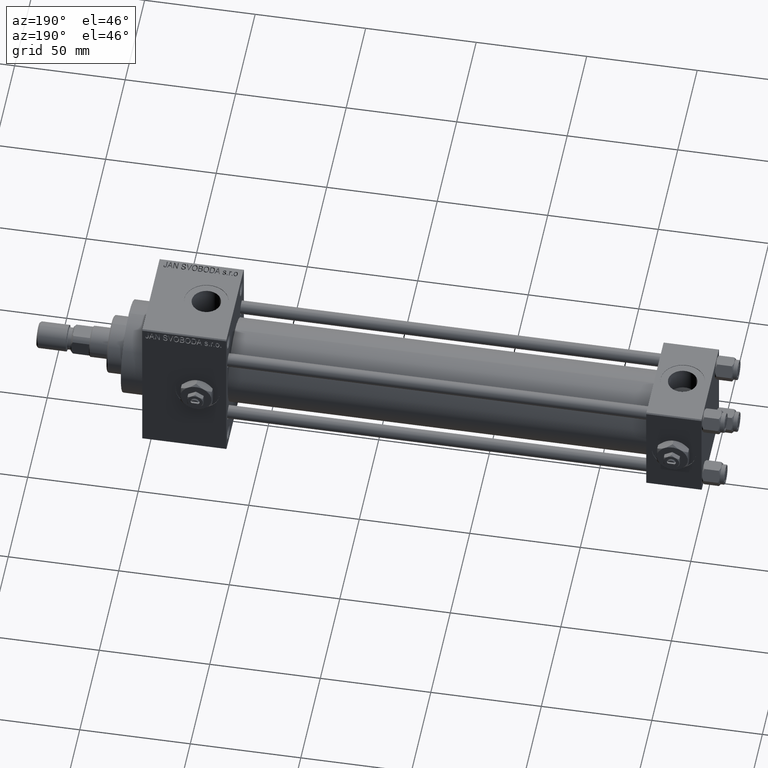
[diagram: clean part render]
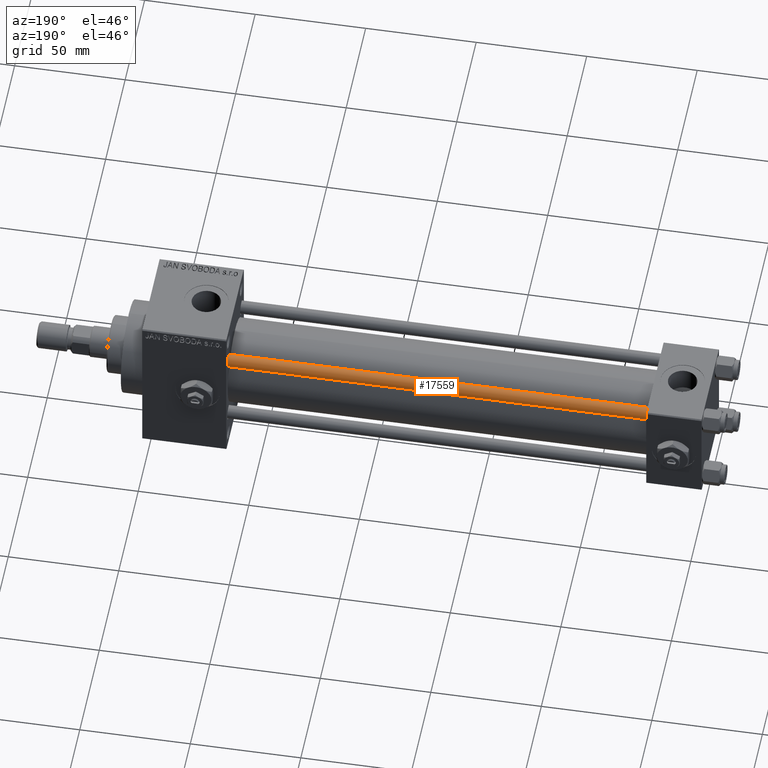
[diagram: same view with one face highlighted and labeled with its STEP entity id]
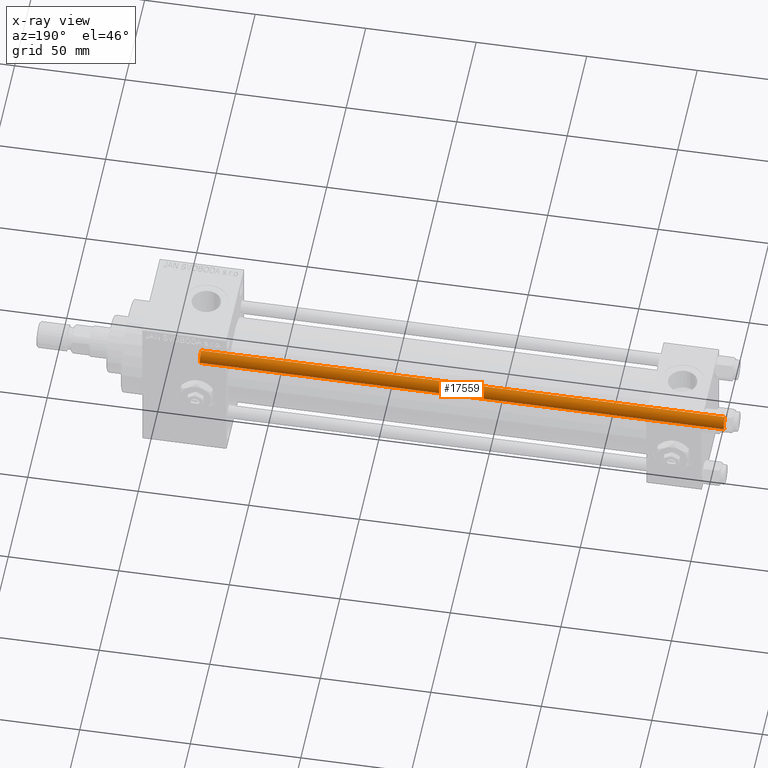
[diagram: x-ray of the same camera — body ghosted, the highlighted face saturated]
A machine part, auxiliary view. The second image highlights one B-rep face of the part: STEP entity #17559.
The next image is the same camera in x-ray: the body ghosted, the highlighted face saturated — about 0% of this face is hidden behind the body in this view.
In plain terms, the highlighted cylindrical surface (edge-blend (fillet) strip) has radius 3 mm, axis along (-1, -0, 0).
Its self-contained STEP definition (entity closure, byte-faithful):
#420 = CIRCLE ( 'NONE', #38237, 3.000000000000000444 ) ;
#2359 = VERTEX_POINT ( 'NONE', #11081 ) ;
#2846 = EDGE_CURVE ( 'NONE', #12298, #26269, #34480, .T. ) ;
#3005 = CARTESIAN_POINT ( 'NONE',  ( -3.000000000000000444, 0.000000000000000000, 238.0000000000000000 ) ) ;
#6204 = EDGE_CURVE ( 'NONE', #2359, #8856, #22800, .T. ) ;
#6768 = ORIENTED_EDGE ( 'NONE', *, *, #33829, .T. ) ;
#8856 = VERTEX_POINT ( 'NONE', #10466 ) ;
#9941 = ORIENTED_EDGE ( 'NONE', *, *, #2846, .F. ) ;
#10466 = CARTESIAN_POINT ( 'NONE',  ( 3.000000000000000444, 3.673940397442060361E-16, 0.5000000000000281997 ) ) ;
#10507 = ORIENTED_EDGE ( 'NONE', *, *, #11842, .T. ) ;
#11081 = CARTESIAN_POINT ( 'NONE',  ( 3.000000000000000444, 3.673940397442060361E-16, 237.5000000000000284 ) ) ;
#11647 = CARTESIAN_POINT ( 'NONE',  ( 0.000000000000000000, 0.000000000000000000, 0.5000000000000281997 ) ) ;
#11842 = EDGE_CURVE ( 'NONE', #8856, #26269, #11864, .T. ) ;
#11864 = CIRCLE ( 'NONE', #19908, 3.000000000000000444 ) ;
#12298 = VERTEX_POINT ( 'NONE', #36201 ) ;
#12749 = CARTESIAN_POINT ( 'NONE',  ( 0.000000000000000000, 0.000000000000000000, 237.5000000000000284 ) ) ;
#17559 = ADVANCED_FACE ( 'NONE', ( #40988 ), #33419, .T. ) ;
#19567 = DIRECTION ( 'NONE',  ( 0.000000000000000000, 0.000000000000000000, -1.000000000000000000 ) ) ;
#19908 = AXIS2_PLACEMENT_3D ( 'NONE', #11647, #26483, #35032 ) ;
#20665 = VECTOR ( 'NONE', #36726, 1000.000000000000000 ) ;
#22800 = LINE ( 'NONE', #41929, #20665 ) ;
#26269 = VERTEX_POINT ( 'NONE', #29807 ) ;
#26483 = DIRECTION ( 'NONE',  ( -0.000000000000000000, -0.000000000000000000, 1.000000000000000000 ) ) ;
#29388 = DIRECTION ( 'NONE',  ( -1.000000000000000000, 0.000000000000000000, 0.000000000000000000 ) ) ;
#29807 = CARTESIAN_POINT ( 'NONE',  ( -3.000000000000000444, 0.000000000000000000, 0.5000000000000281997 ) ) ;
#32914 = CARTESIAN_POINT ( 'NONE',  ( 0.000000000000000000, 0.000000000000000000, 238.0000000000000000 ) ) ;
#33419 = CYLINDRICAL_SURFACE ( 'NONE', #44994, 3.000000000000000444 ) ;
#33829 = EDGE_CURVE ( 'NONE', #12298, #2359, #420, .T. ) ;
#33923 = DIRECTION ( 'NONE',  ( -0.000000000000000000, -0.000000000000000000, -1.000000000000000000 ) ) ;
#34480 = LINE ( 'NONE', #3005, #40522 ) ;
#35032 = DIRECTION ( 'NONE',  ( 1.000000000000000000, 0.000000000000000000, 0.000000000000000000 ) ) ;
#36201 = CARTESIAN_POINT ( 'NONE',  ( -3.000000000000000444, 0.000000000000000000, 237.5000000000000284 ) ) ;
#36726 = DIRECTION ( 'NONE',  ( -0.000000000000000000, -0.000000000000000000, -1.000000000000000000 ) ) ;
#38237 = AXIS2_PLACEMENT_3D ( 'NONE', #12749, #19567, #39418 ) ;
#39418 = DIRECTION ( 'NONE',  ( 1.000000000000000000, 0.000000000000000000, 0.000000000000000000 ) ) ;
#40522 = VECTOR ( 'NONE', #49572, 1000.000000000000000 ) ;
#40810 = ORIENTED_EDGE ( 'NONE', *, *, #6204, .T. ) ;
#40988 = FACE_OUTER_BOUND ( 'NONE', #46040, .T. ) ;
#41929 = CARTESIAN_POINT ( 'NONE',  ( 3.000000000000000444, 3.673940397442060361E-16, 238.0000000000000000 ) ) ;
#44994 = AXIS2_PLACEMENT_3D ( 'NONE', #32914, #33923, #29388 ) ;
#46040 = EDGE_LOOP ( 'NONE', ( #6768, #40810, #10507, #9941 ) ) ;
#49572 = DIRECTION ( 'NONE',  ( -0.000000000000000000, -0.000000000000000000, -1.000000000000000000 ) ) ;